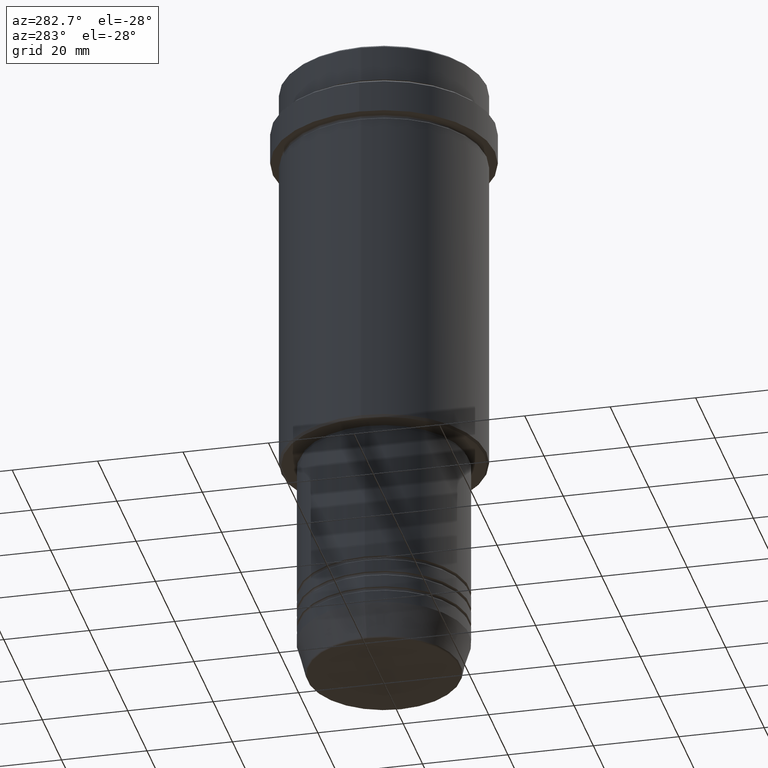
[diagram: clean part render]
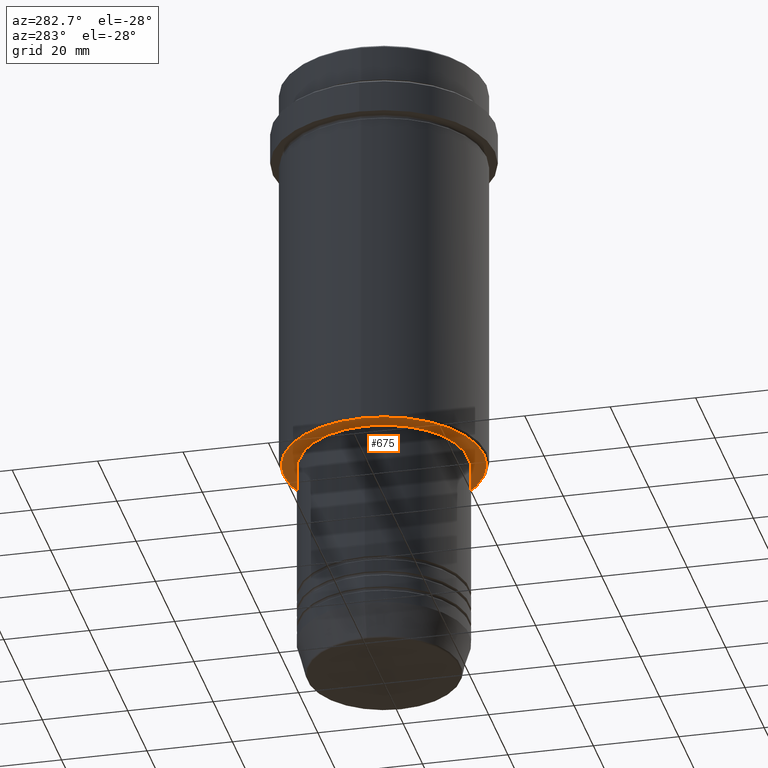
[diagram: same view with one face highlighted and labeled with its STEP entity id]
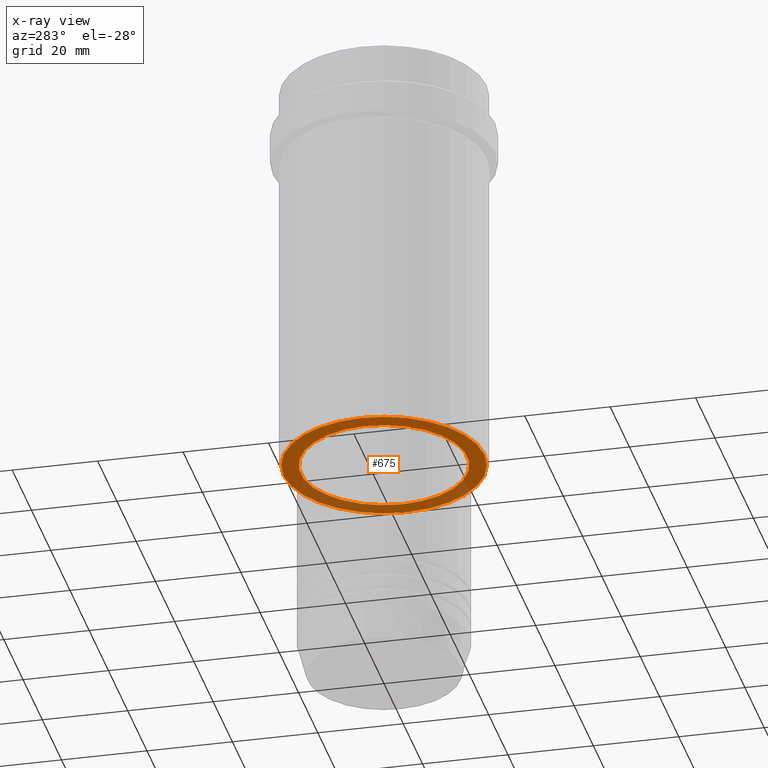
[diagram: x-ray of the same camera — body ghosted, the highlighted face saturated]
A machine part, auxiliary view. The second image highlights one B-rep face of the part: STEP entity #675.
The next image is the same camera in x-ray: the body ghosted, the highlighted face saturated — about 35% of this face is hidden behind the body in this view.
In plain terms, the highlighted planar face has unit normal (0, 0, -1).
Its self-contained STEP definition (entity closure, byte-faithful):
#42 = VERTEX_POINT ( 'NONE', #485 ) ;
#47 = DIRECTION ( 'NONE',  ( 0.000000000000000000, 0.000000000000000000, -1.000000000000000000 ) ) ;
#75 = DIRECTION ( 'NONE',  ( -0.000000000000000000, -0.000000000000000000, 1.000000000000000000 ) ) ;
#95 = FACE_BOUND ( 'NONE', #1294, .T. ) ;
#113 = DIRECTION ( 'NONE',  ( 0.000000000000000000, 0.000000000000000000, -1.000000000000000000 ) ) ;
#120 = FACE_OUTER_BOUND ( 'NONE', #953, .T. ) ;
#142 = ORIENTED_EDGE ( 'NONE', *, *, #591, .T. ) ;
#161 = ORIENTED_EDGE ( 'NONE', *, *, #319, .T. ) ;
#177 = CIRCLE ( 'NONE', #894, 19.49999999999998934 ) ;
#265 = DIRECTION ( 'NONE',  ( 0.000000000000000000, 0.000000000000000000, -1.000000000000000000 ) ) ;
#319 = EDGE_CURVE ( 'NONE', #42, #1177, #738, .T. ) ;
#331 = DIRECTION ( 'NONE',  ( 1.000000000000000000, 0.000000000000000000, 0.000000000000000000 ) ) ;
#336 = AXIS2_PLACEMENT_3D ( 'NONE', #615, #75, #489 ) ;
#485 = CARTESIAN_POINT ( 'NONE',  ( 23.49999999999999289, 0.000000000000000000, -95.99999999999998579 ) ) ;
#489 = DIRECTION ( 'NONE',  ( 1.000000000000000000, 0.000000000000000000, 0.000000000000000000 ) ) ;
#537 = AXIS2_PLACEMENT_3D ( 'NONE', #1102, #113, #1400 ) ;
#538 = CIRCLE ( 'NONE', #336, 19.49999999999998934 ) ;
#557 = CARTESIAN_POINT ( 'NONE',  ( 0.000000000000000000, 0.000000000000000000, -95.99999999999998579 ) ) ;
#583 = AXIS2_PLACEMENT_3D ( 'NONE', #1244, #265, #1135 ) ;
#591 = EDGE_CURVE ( 'NONE', #843, #976, #177, .T. ) ;
#615 = CARTESIAN_POINT ( 'NONE',  ( 0.000000000000000000, 0.000000000000000000, -95.99999999999998579 ) ) ;
#642 = PLANE ( 'NONE',  #537 ) ;
#675 = ADVANCED_FACE ( 'NONE', ( #120, #95 ), #642, .T. ) ;
#730 = CARTESIAN_POINT ( 'NONE',  ( -23.49999999999999289, 2.908536147974962924E-15, -95.99999999999998579 ) ) ;
#738 = CIRCLE ( 'NONE', #824, 23.49999999999999289 ) ;
#824 = AXIS2_PLACEMENT_3D ( 'NONE', #1332, #47, #1028 ) ;
#828 = EDGE_CURVE ( 'NONE', #1177, #42, #988, .T. ) ;
#843 = VERTEX_POINT ( 'NONE', #1025 ) ;
#894 = AXIS2_PLACEMENT_3D ( 'NONE', #557, #1320, #331 ) ;
#953 = EDGE_LOOP ( 'NONE', ( #161, #1258 ) ) ;
#975 = CARTESIAN_POINT ( 'NONE',  ( 19.49999999999998934, 0.000000000000000000, -95.99999999999998579 ) ) ;
#976 = VERTEX_POINT ( 'NONE', #975 ) ;
#988 = CIRCLE ( 'NONE', #583, 23.49999999999999289 ) ;
#1025 = CARTESIAN_POINT ( 'NONE',  ( -19.49999999999998934, 2.388061258337337361E-15, -95.99999999999998579 ) ) ;
#1028 = DIRECTION ( 'NONE',  ( -1.000000000000000000, 0.000000000000000000, 0.000000000000000000 ) ) ;
#1102 = CARTESIAN_POINT ( 'NONE',  ( 0.000000000000000000, 24.00000000000000000, -95.99999999999998579 ) ) ;
#1116 = EDGE_CURVE ( 'NONE', #976, #843, #538, .T. ) ;
#1135 = DIRECTION ( 'NONE',  ( -1.000000000000000000, 0.000000000000000000, 0.000000000000000000 ) ) ;
#1177 = VERTEX_POINT ( 'NONE', #730 ) ;
#1216 = ORIENTED_EDGE ( 'NONE', *, *, #1116, .T. ) ;
#1244 = CARTESIAN_POINT ( 'NONE',  ( 0.000000000000000000, 0.000000000000000000, -95.99999999999998579 ) ) ;
#1258 = ORIENTED_EDGE ( 'NONE', *, *, #828, .T. ) ;
#1294 = EDGE_LOOP ( 'NONE', ( #1216, #142 ) ) ;
#1320 = DIRECTION ( 'NONE',  ( -0.000000000000000000, -0.000000000000000000, 1.000000000000000000 ) ) ;
#1332 = CARTESIAN_POINT ( 'NONE',  ( 0.000000000000000000, 0.000000000000000000, -95.99999999999998579 ) ) ;
#1400 = DIRECTION ( 'NONE',  ( -1.000000000000000000, 0.000000000000000000, -0.000000000000000000 ) ) ;